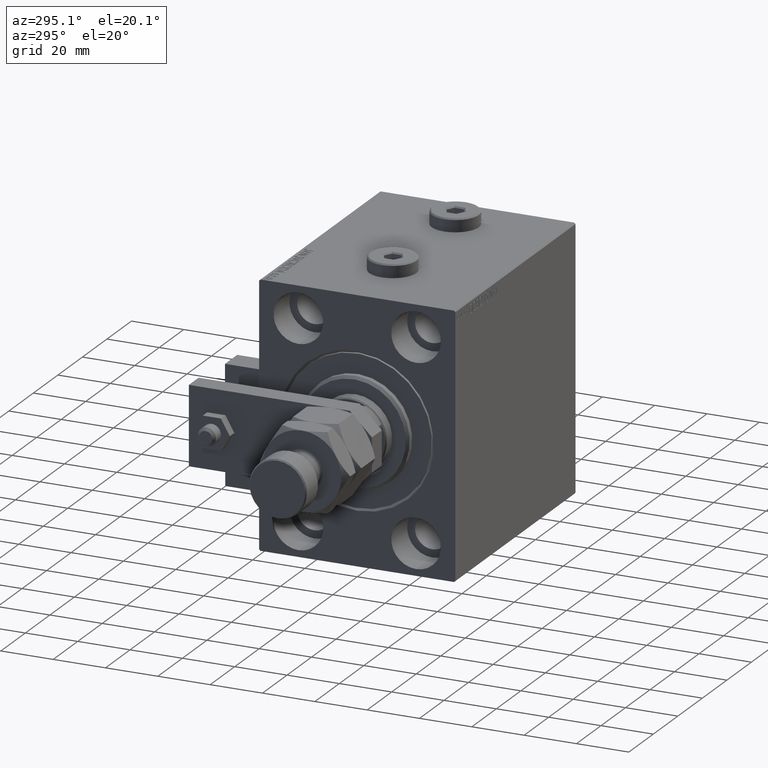
[diagram: clean part render]
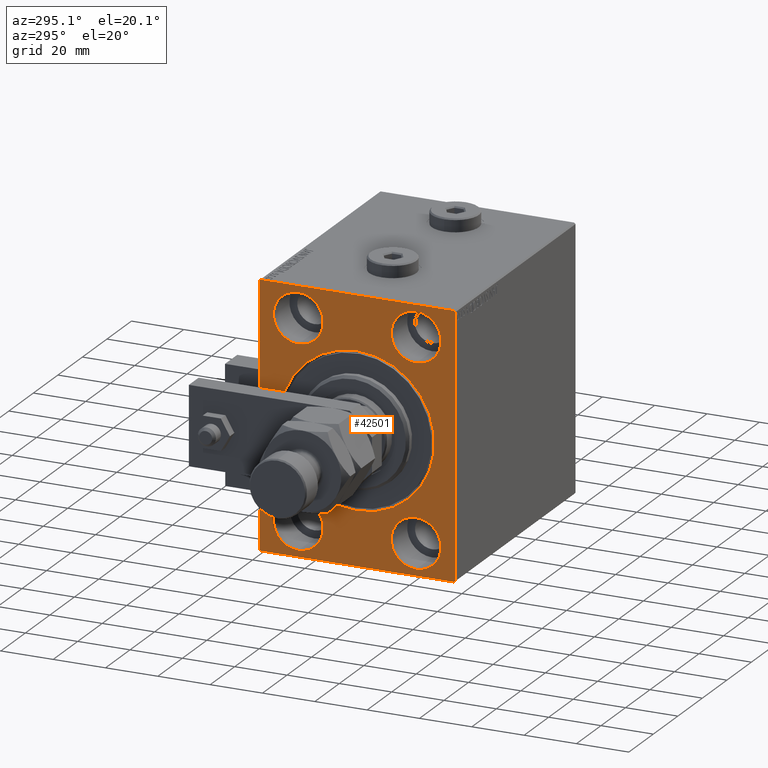
[diagram: same view with one face highlighted and labeled with its STEP entity id]
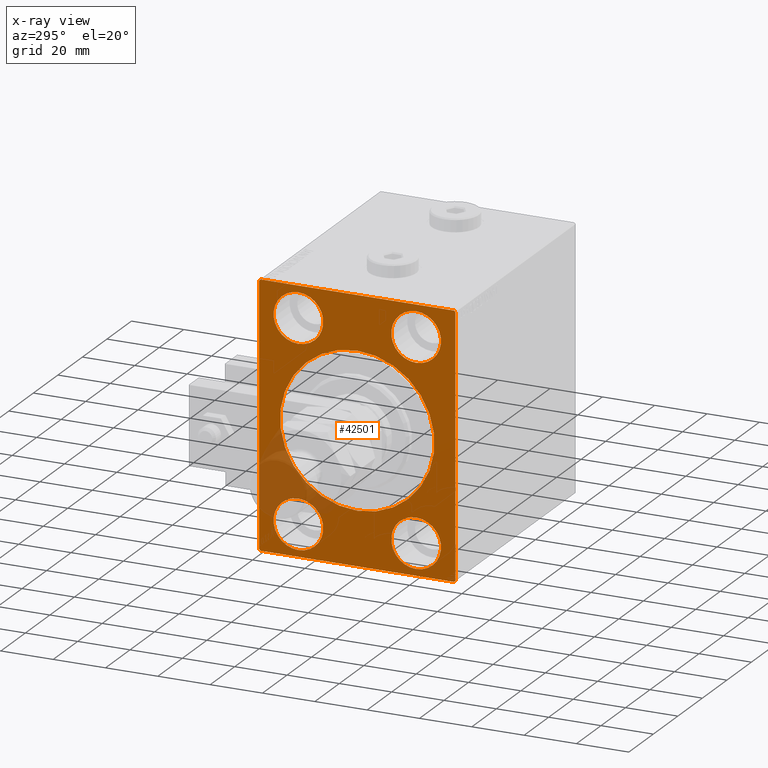
[diagram: x-ray of the same camera — body ghosted, the highlighted face saturated]
A machine part, auxiliary view. The second image highlights one B-rep face of the part: STEP entity #42501.
The next image is the same camera in x-ray: the body ghosted, the highlighted face saturated — about 11% of this face is hidden behind the body in this view.
In plain terms, the highlighted planar face has unit normal (1, 0, 0).
Its self-contained STEP definition (entity closure, byte-faithful):
#1 = CARTESIAN_POINT ( 'NONE',  ( 0.000000000000000000, 22.50000000000000355, 37.99999999999999289 ) ) ;
#102 = CARTESIAN_POINT ( 'NONE',  ( 0.000000000000000000, -22.50000000000000711, -28.49999999999998934 ) ) ;
#296 = EDGE_CURVE ( 'NONE', #33571, #6293, #29146, .T. ) ;
#963 = CARTESIAN_POINT ( 'NONE',  ( 0.000000000000000000, -37.50000000000000711, 49.49999999999997868 ) ) ;
#1910 = LINE ( 'NONE', #42915, #37173 ) ;
#2158 = AXIS2_PLACEMENT_3D ( 'NONE', #42341, #15327, #35034 ) ;
#2415 = CARTESIAN_POINT ( 'NONE',  ( 0.000000000000000000, -22.50000000000000711, -47.49999999999999289 ) ) ;
#2562 = CARTESIAN_POINT ( 'NONE',  ( 0.000000000000000000, -37.50000000000000711, -50.00000000000000711 ) ) ;
#3057 = VERTEX_POINT ( 'NONE', #37850 ) ;
#3459 = DIRECTION ( 'NONE',  ( -1.000000000000000000, 0.000000000000000000, 0.000000000000000000 ) ) ;
#3672 = VERTEX_POINT ( 'NONE', #963 ) ;
#3822 = AXIS2_PLACEMENT_3D ( 'NONE', #15353, #34802, #43932 ) ;
#4255 = DIRECTION ( 'NONE',  ( -0.000000000000000000, 0.7071067811865474617, 0.7071067811865474617 ) ) ;
#4791 = CIRCLE ( 'NONE', #40981, 9.500000000000001776 ) ;
#5153 = EDGE_LOOP ( 'NONE', ( #37861, #21844 ) ) ;
#5175 = EDGE_LOOP ( 'NONE', ( #28010, #19503 ) ) ;
#5249 = CIRCLE ( 'NONE', #35391, 29.50000000000001421 ) ;
#5251 = CIRCLE ( 'NONE', #23305, 9.500000000000001776 ) ;
#5729 = ORIENTED_EDGE ( 'NONE', *, *, #17986, .T. ) ;
#6081 = LINE ( 'NONE', #2562, #17396 ) ;
#6279 = VECTOR ( 'NONE', #4255, 1000.000000000000114 ) ;
#6293 = VERTEX_POINT ( 'NONE', #22706 ) ;
#6400 = AXIS2_PLACEMENT_3D ( 'NONE', #46780, #50038, #45998 ) ;
#6726 = EDGE_CURVE ( 'NONE', #23815, #45974, #5251, .T. ) ;
#6967 = CARTESIAN_POINT ( 'NONE',  ( 0.000000000000000000, -22.49999999999999645, 37.99999999999999289 ) ) ;
#7150 = DIRECTION ( 'NONE',  ( 0.000000000000000000, 0.000000000000000000, 1.000000000000000000 ) ) ;
#7579 = EDGE_CURVE ( 'NONE', #9091, #34288, #30691, .T. ) ;
#8085 = ORIENTED_EDGE ( 'NONE', *, *, #16672, .F. ) ;
#8442 = CARTESIAN_POINT ( 'NONE',  ( 0.000000000000000000, 37.49999999999999289, 50.00000000000000711 ) ) ;
#8501 = EDGE_CURVE ( 'NONE', #3672, #34288, #39372, .T. ) ;
#8903 = FACE_BOUND ( 'NONE', #5153, .T. ) ;
#9091 = VERTEX_POINT ( 'NONE', #23253 ) ;
#9567 = VERTEX_POINT ( 'NONE', #2415 ) ;
#9739 = CARTESIAN_POINT ( 'NONE',  ( 0.000000000000000000, -22.49999999999999645, 47.49999999999999289 ) ) ;
#10124 = AXIS2_PLACEMENT_3D ( 'NONE', #6967, #3459, #47428 ) ;
#10144 = DIRECTION ( 'NONE',  ( 0.000000000000000000, 0.000000000000000000, 1.000000000000000000 ) ) ;
#10309 = EDGE_CURVE ( 'NONE', #12135, #53087, #5249, .T. ) ;
#11461 = CARTESIAN_POINT ( 'NONE',  ( 0.000000000000000000, -22.50000000000000711, -37.99999999999999289 ) ) ;
#11863 = CIRCLE ( 'NONE', #31696, 9.500000000000001776 ) ;
#12135 = VERTEX_POINT ( 'NONE', #14096 ) ;
#12440 = ORIENTED_EDGE ( 'NONE', *, *, #296, .F. ) ;
#12945 = ORIENTED_EDGE ( 'NONE', *, *, #37003, .F. ) ;
#13218 = EDGE_CURVE ( 'NONE', #45974, #23815, #16531, .T. ) ;
#13224 = FACE_BOUND ( 'NONE', #16108, .T. ) ;
#13231 = DIRECTION ( 'NONE',  ( 0.000000000000000000, 0.000000000000000000, 1.000000000000000000 ) ) ;
#13490 = FACE_OUTER_BOUND ( 'NONE', #15998, .T. ) ;
#13605 = CARTESIAN_POINT ( 'NONE',  ( 0.000000000000000000, 22.50000000000000355, 47.49999999999999289 ) ) ;
#14096 = CARTESIAN_POINT ( 'NONE',  ( 0.000000000000000000, 3.612708057484693970E-15, -29.50000000000001421 ) ) ;
#14453 = EDGE_CURVE ( 'NONE', #3672, #16781, #32856, .T. ) ;
#15327 = DIRECTION ( 'NONE',  ( 1.000000000000000000, 0.000000000000000000, 0.000000000000000000 ) ) ;
#15353 = CARTESIAN_POINT ( 'NONE',  ( 0.000000000000000000, 0.000000000000000000, 0.000000000000000000 ) ) ;
#15998 = EDGE_LOOP ( 'NONE', ( #31295, #35407, #8085, #45379, #12440, #33707, #18431, #27119 ) ) ;
#16108 = EDGE_LOOP ( 'NONE', ( #24588, #50922 ) ) ;
#16148 = DIRECTION ( 'NONE',  ( -1.000000000000000000, 0.000000000000000000, 0.000000000000000000 ) ) ;
#16456 = VECTOR ( 'NONE', #47920, 1000.000000000000114 ) ;
#16531 = CIRCLE ( 'NONE', #33801, 9.500000000000001776 ) ;
#16672 = EDGE_CURVE ( 'NONE', #20371, #16781, #53217, .T. ) ;
#16693 = EDGE_LOOP ( 'NONE', ( #5729, #37280 ) ) ;
#16781 = VERTEX_POINT ( 'NONE', #31265 ) ;
#16847 = AXIS2_PLACEMENT_3D ( 'NONE', #11461, #23890, #7150 ) ;
#16943 = CARTESIAN_POINT ( 'NONE',  ( 0.000000000000000000, 37.50000000000000711, -49.50000000000000000 ) ) ;
#17395 = VECTOR ( 'NONE', #50970, 1000.000000000000000 ) ;
#17396 = VECTOR ( 'NONE', #51652, 1000.000000000000000 ) ;
#17530 = DIRECTION ( 'NONE',  ( 0.000000000000000000, -1.387778780781445676E-16, 1.000000000000000000 ) ) ;
#17986 = EDGE_CURVE ( 'NONE', #53087, #12135, #32249, .T. ) ;
#18274 = CARTESIAN_POINT ( 'NONE',  ( 0.000000000000000000, -36.99999999999999289, -50.00000000000000711 ) ) ;
#18404 = VECTOR ( 'NONE', #49437, 1000.000000000000000 ) ;
#18431 = ORIENTED_EDGE ( 'NONE', *, *, #30975, .F. ) ;
#18627 = VERTEX_POINT ( 'NONE', #102 ) ;
#19140 = CARTESIAN_POINT ( 'NONE',  ( 0.000000000000000000, 22.49999999999999645, -28.49999999999998934 ) ) ;
#19503 = ORIENTED_EDGE ( 'NONE', *, *, #13218, .F. ) ;
#19946 = CARTESIAN_POINT ( 'NONE',  ( 0.000000000000000000, 22.49999999999999645, -37.99999999999999289 ) ) ;
#20061 = DIRECTION ( 'NONE',  ( -1.000000000000000000, 0.000000000000000000, 0.000000000000000000 ) ) ;
#20371 = VERTEX_POINT ( 'NONE', #20783 ) ;
#20783 = CARTESIAN_POINT ( 'NONE',  ( 0.000000000000000000, 36.99999999999999289, 50.00000000000000711 ) ) ;
#20841 = EDGE_CURVE ( 'NONE', #9567, #18627, #4791, .T. ) ;
#21169 = CIRCLE ( 'NONE', #16847, 9.500000000000001776 ) ;
#21339 = DIRECTION ( 'NONE',  ( -1.000000000000000000, 0.000000000000000000, 0.000000000000000000 ) ) ;
#21844 = ORIENTED_EDGE ( 'NONE', *, *, #46858, .F. ) ;
#22308 = DIRECTION ( 'NONE',  ( -1.000000000000000000, 0.000000000000000000, 0.000000000000000000 ) ) ;
#22706 = CARTESIAN_POINT ( 'NONE',  ( 0.000000000000000000, 37.49999999999999289, 49.50000000000000000 ) ) ;
#23026 = CIRCLE ( 'NONE', #31657, 9.500000000000001776 ) ;
#23253 = CARTESIAN_POINT ( 'NONE',  ( 0.000000000000000000, -36.99999999999999289, -50.00000000000000711 ) ) ;
#23305 = AXIS2_PLACEMENT_3D ( 'NONE', #52821, #16148, #32342 ) ;
#23464 = DIRECTION ( 'NONE',  ( 0.000000000000000000, 0.000000000000000000, 1.000000000000000000 ) ) ;
#23815 = VERTEX_POINT ( 'NONE', #19140 ) ;
#23826 = EDGE_LOOP ( 'NONE', ( #12945, #31315 ) ) ;
#23890 = DIRECTION ( 'NONE',  ( -1.000000000000000000, 0.000000000000000000, 0.000000000000000000 ) ) ;
#24009 = DIRECTION ( 'NONE',  ( -1.000000000000000000, 0.000000000000000000, 0.000000000000000000 ) ) ;
#24588 = ORIENTED_EDGE ( 'NONE', *, *, #42790, .F. ) ;
#24951 = VERTEX_POINT ( 'NONE', #13605 ) ;
#25910 = PLANE ( 'NONE',  #2158 ) ;
#26713 = CARTESIAN_POINT ( 'NONE',  ( 0.000000000000000000, -37.50000000000000711, 49.99999999999999289 ) ) ;
#26785 = VERTEX_POINT ( 'NONE', #33243 ) ;
#27119 = ORIENTED_EDGE ( 'NONE', *, *, #7579, .T. ) ;
#27748 = VERTEX_POINT ( 'NONE', #9739 ) ;
#28010 = ORIENTED_EDGE ( 'NONE', *, *, #6726, .F. ) ;
#29084 = CARTESIAN_POINT ( 'NONE',  ( 0.000000000000000000, -37.50000000000000711, 49.49999999999997868 ) ) ;
#29146 = LINE ( 'NONE', #33992, #45802 ) ;
#30090 = LINE ( 'NONE', #50824, #44588 ) ;
#30691 = LINE ( 'NONE', #18274, #16456 ) ;
#30975 = EDGE_CURVE ( 'NONE', #9091, #3057, #6081, .T. ) ;
#31166 = CARTESIAN_POINT ( 'NONE',  ( 0.000000000000000000, 22.50000000000000355, 28.49999999999998934 ) ) ;
#31265 = CARTESIAN_POINT ( 'NONE',  ( 0.000000000000000000, -36.99999999999999289, 49.99999999999999289 ) ) ;
#31295 = ORIENTED_EDGE ( 'NONE', *, *, #8501, .F. ) ;
#31315 = ORIENTED_EDGE ( 'NONE', *, *, #47103, .F. ) ;
#31393 = CIRCLE ( 'NONE', #6400, 9.500000000000001776 ) ;
#31395 = EDGE_CURVE ( 'NONE', #20371, #6293, #1910, .T. ) ;
#31657 = AXIS2_PLACEMENT_3D ( 'NONE', #1, #21339, #13231 ) ;
#31696 = AXIS2_PLACEMENT_3D ( 'NONE', #44859, #20061, #52958 ) ;
#32210 = CARTESIAN_POINT ( 'NONE',  ( 0.000000000000000000, 0.000000000000000000, 29.50000000000001421 ) ) ;
#32249 = CIRCLE ( 'NONE', #3822, 29.50000000000001421 ) ;
#32342 = DIRECTION ( 'NONE',  ( 0.000000000000000000, 0.000000000000000000, 1.000000000000000000 ) ) ;
#32856 = LINE ( 'NONE', #29084, #6279 ) ;
#33243 = CARTESIAN_POINT ( 'NONE',  ( 0.000000000000000000, -22.49999999999999645, 28.49999999999998934 ) ) ;
#33571 = VERTEX_POINT ( 'NONE', #16943 ) ;
#33707 = ORIENTED_EDGE ( 'NONE', *, *, #47650, .T. ) ;
#33801 = AXIS2_PLACEMENT_3D ( 'NONE', #19946, #24009, #23464 ) ;
#33992 = CARTESIAN_POINT ( 'NONE',  ( 0.000000000000000000, 37.50000000000000711, -50.00000000000000000 ) ) ;
#34040 = CARTESIAN_POINT ( 'NONE',  ( 0.000000000000000000, 0.000000000000000000, 0.000000000000000000 ) ) ;
#34288 = VERTEX_POINT ( 'NONE', #48179 ) ;
#34802 = DIRECTION ( 'NONE',  ( 1.000000000000000000, 0.000000000000000000, 0.000000000000000000 ) ) ;
#35034 = DIRECTION ( 'NONE',  ( 0.000000000000000000, 0.000000000000000000, -1.000000000000000000 ) ) ;
#35391 = AXIS2_PLACEMENT_3D ( 'NONE', #34040, #50477, #46687 ) ;
#35407 = ORIENTED_EDGE ( 'NONE', *, *, #14453, .T. ) ;
#36339 = VERTEX_POINT ( 'NONE', #31166 ) ;
#37003 = EDGE_CURVE ( 'NONE', #27748, #26785, #31393, .T. ) ;
#37173 = VECTOR ( 'NONE', #38872, 999.9999999999998863 ) ;
#37280 = ORIENTED_EDGE ( 'NONE', *, *, #10309, .T. ) ;
#37850 = CARTESIAN_POINT ( 'NONE',  ( 0.000000000000000000, 37.00000000000000711, -50.00000000000000000 ) ) ;
#37861 = ORIENTED_EDGE ( 'NONE', *, *, #47890, .F. ) ;
#38872 = DIRECTION ( 'NONE',  ( -0.000000000000000000, 0.7071067811865425767, -0.7071067811865525687 ) ) ;
#39372 = LINE ( 'NONE', #26713, #17395 ) ;
#40981 = AXIS2_PLACEMENT_3D ( 'NONE', #51145, #22308, #10144 ) ;
#42078 = FACE_BOUND ( 'NONE', #23826, .T. ) ;
#42341 = CARTESIAN_POINT ( 'NONE',  ( 0.000000000000000000, 0.000000000000000000, 0.000000000000000000 ) ) ;
#42489 = DIRECTION ( 'NONE',  ( 0.000000000000000000, -0.7071067811865474617, -0.7071067811865474617 ) ) ;
#42501 = ADVANCED_FACE ( 'NONE', ( #50435, #45852, #42078, #8903, #13224, #13490 ), #25910, .F. ) ;
#42790 = EDGE_CURVE ( 'NONE', #18627, #9567, #21169, .T. ) ;
#42915 = CARTESIAN_POINT ( 'NONE',  ( 0.000000000000000000, 36.99999999999999289, 50.00000000000000711 ) ) ;
#43637 = CARTESIAN_POINT ( 'NONE',  ( 0.000000000000000000, 22.49999999999999645, -47.49999999999999289 ) ) ;
#43932 = DIRECTION ( 'NONE',  ( 0.000000000000000000, 0.000000000000000000, -1.000000000000000000 ) ) ;
#44588 = VECTOR ( 'NONE', #42489, 1000.000000000000114 ) ;
#44859 = CARTESIAN_POINT ( 'NONE',  ( 0.000000000000000000, 22.50000000000000355, 37.99999999999999289 ) ) ;
#45379 = ORIENTED_EDGE ( 'NONE', *, *, #31395, .T. ) ;
#45802 = VECTOR ( 'NONE', #17530, 1000.000000000000000 ) ;
#45852 = FACE_BOUND ( 'NONE', #5175, .T. ) ;
#45974 = VERTEX_POINT ( 'NONE', #43637 ) ;
#45998 = DIRECTION ( 'NONE',  ( 0.000000000000000000, 0.000000000000000000, 1.000000000000000000 ) ) ;
#46687 = DIRECTION ( 'NONE',  ( 0.000000000000000000, 0.000000000000000000, -1.000000000000000000 ) ) ;
#46780 = CARTESIAN_POINT ( 'NONE',  ( 0.000000000000000000, -22.49999999999999645, 37.99999999999999289 ) ) ;
#46858 = EDGE_CURVE ( 'NONE', #36339, #24951, #23026, .T. ) ;
#47103 = EDGE_CURVE ( 'NONE', #26785, #27748, #51433, .T. ) ;
#47428 = DIRECTION ( 'NONE',  ( 0.000000000000000000, 0.000000000000000000, 1.000000000000000000 ) ) ;
#47650 = EDGE_CURVE ( 'NONE', #33571, #3057, #30090, .T. ) ;
#47890 = EDGE_CURVE ( 'NONE', #24951, #36339, #11863, .T. ) ;
#47920 = DIRECTION ( 'NONE',  ( -0.000000000000000000, -0.7071067811865474617, 0.7071067811865474617 ) ) ;
#48179 = CARTESIAN_POINT ( 'NONE',  ( 0.000000000000000000, -37.50000000000000711, -49.49999999999999289 ) ) ;
#49437 = DIRECTION ( 'NONE',  ( 0.000000000000000000, -1.000000000000000000, -1.850371707708594316E-16 ) ) ;
#50038 = DIRECTION ( 'NONE',  ( -1.000000000000000000, 0.000000000000000000, 0.000000000000000000 ) ) ;
#50435 = FACE_BOUND ( 'NONE', #16693, .T. ) ;
#50477 = DIRECTION ( 'NONE',  ( 1.000000000000000000, 0.000000000000000000, 0.000000000000000000 ) ) ;
#50824 = CARTESIAN_POINT ( 'NONE',  ( 0.000000000000000000, 37.50000000000000711, -49.50000000000000000 ) ) ;
#50922 = ORIENTED_EDGE ( 'NONE', *, *, #20841, .F. ) ;
#50970 = DIRECTION ( 'NONE',  ( 0.000000000000000000, 0.000000000000000000, -1.000000000000000000 ) ) ;
#51145 = CARTESIAN_POINT ( 'NONE',  ( 0.000000000000000000, -22.50000000000000711, -37.99999999999999289 ) ) ;
#51433 = CIRCLE ( 'NONE', #10124, 9.500000000000001776 ) ;
#51652 = DIRECTION ( 'NONE',  ( 0.000000000000000000, 1.000000000000000000, 9.251858538542970348E-17 ) ) ;
#52821 = CARTESIAN_POINT ( 'NONE',  ( 0.000000000000000000, 22.49999999999999645, -37.99999999999999289 ) ) ;
#52958 = DIRECTION ( 'NONE',  ( 0.000000000000000000, 0.000000000000000000, 1.000000000000000000 ) ) ;
#53087 = VERTEX_POINT ( 'NONE', #32210 ) ;
#53217 = LINE ( 'NONE', #8442, #18404 ) ;